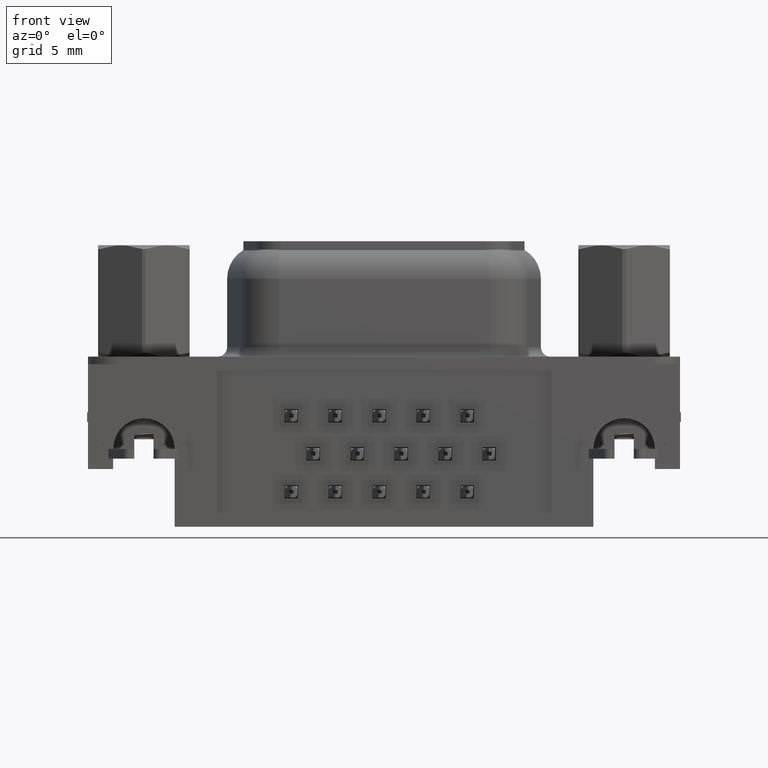
[diagram: clean part render]
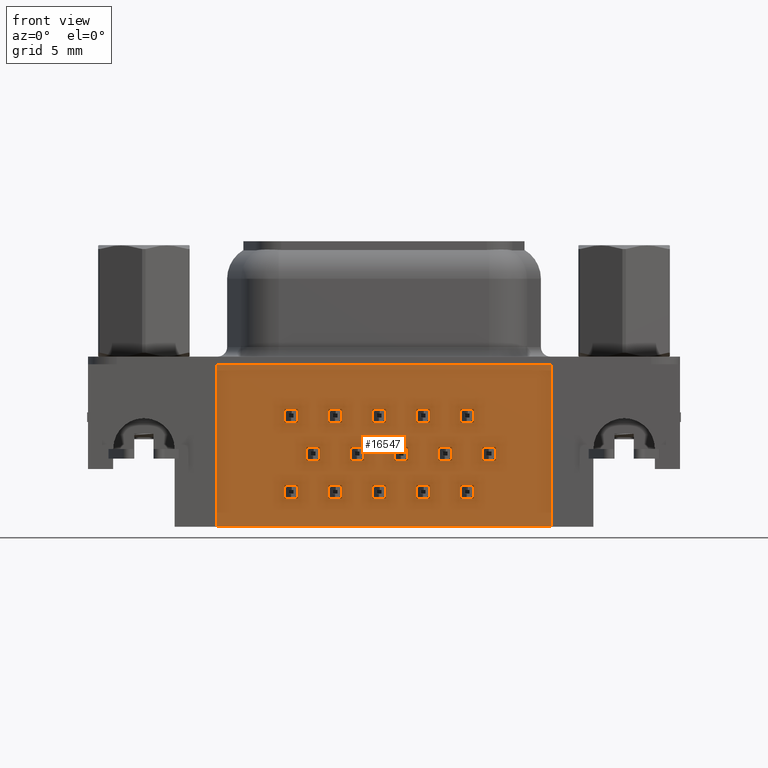
[diagram: same view with one face highlighted and labeled with its STEP entity id]
A machine part, front view. The second image highlights one B-rep face of the part: STEP entity #16547.
In plain terms, the highlighted planar face has unit normal (-0, -1, -0).
Its self-contained STEP definition (entity closure, byte-faithful):
#102 = CARTESIAN_POINT ( 'NONE',  ( 9.607000000000002900, -5.925000000000002500, -2.330000000000001400 ) ) ;
#259 = VERTEX_POINT ( 'NONE', #17184 ) ;
#267 = FACE_BOUND ( 'NONE', #7662, .T. ) ;
#364 = VECTOR ( 'NONE', #4855, 1000.000000000000000 ) ;
#491 = LINE ( 'NONE', #31818, #7268 ) ;
#502 = DIRECTION ( 'NONE',  ( -0.0000000000000000000, -0.0000000000000000000, 1.000000000000000000 ) ) ;
#509 = CARTESIAN_POINT ( 'NONE',  ( 16.46500000000000700, -5.925000000000004300, -2.330000000000000500 ) ) ;
#556 = CARTESIAN_POINT ( 'NONE',  ( 8.021000000000006100, -5.925000000000002500, -6.290000000000000900 ) ) ;
#761 = ORIENTED_EDGE ( 'NONE', *, *, #11475, .F. ) ;
#840 = EDGE_CURVE ( 'NONE', #259, #30590, #17893, .T. ) ;
#922 = CARTESIAN_POINT ( 'NONE',  ( 10.30700000000000900, -5.925000000000002500, -3.030000000000000700 ) ) ;
#939 = CARTESIAN_POINT ( 'NONE',  ( 21.19999999999999600, -5.925000000000005200, 3.734721338016180200E-016 ) ) ;
#943 = VERTEX_POINT ( 'NONE', #19006 ) ;
#975 = ORIENTED_EDGE ( 'NONE', *, *, #20814, .F. ) ;
#978 = DIRECTION ( 'NONE',  ( -0.0000000000000000000, -0.0000000000000000000, 1.000000000000000000 ) ) ;
#986 = CARTESIAN_POINT ( 'NONE',  ( 15.32200000000000800, -5.925000000000004300, -4.309999999999999600 ) ) ;
#1000 = EDGE_CURVE ( 'NONE', #1437, #14953, #13879, .T. ) ;
#1008 = CARTESIAN_POINT ( 'NONE',  ( 10.30700000000000900, -5.925000000000002500, -2.330000000000001400 ) ) ;
#1039 = FACE_BOUND ( 'NONE', #25432, .T. ) ;
#1075 = CARTESIAN_POINT ( 'NONE',  ( 16.46500000000000700, -5.925000000000004300, -2.330000000000000500 ) ) ;
#1128 = EDGE_CURVE ( 'NONE', #32878, #31295, #31884, .T. ) ;
#1156 = VECTOR ( 'NONE', #14418, 1000.000000000000000 ) ;
#1249 = DIRECTION ( 'NONE',  ( -0.0000000000000000000, -0.0000000000000000000, 1.000000000000000000 ) ) ;
#1256 = VECTOR ( 'NONE', #7553, 1000.000000000000000 ) ;
#1344 = EDGE_CURVE ( 'NONE', #27110, #16733, #26208, .T. ) ;
#1383 = CARTESIAN_POINT ( 'NONE',  ( 8.464000000000004000, -5.925000000000002500, -5.009999999999999800 ) ) ;
#1399 = EDGE_CURVE ( 'NONE', #30871, #5029, #5930, .T. ) ;
#1437 = VERTEX_POINT ( 'NONE', #2840 ) ;
#1464 = LINE ( 'NONE', #19379, #27796 ) ;
#1515 = ORIENTED_EDGE ( 'NONE', *, *, #8242, .F. ) ;
#1551 = ORIENTED_EDGE ( 'NONE', *, *, #8695, .F. ) ;
#1785 = CARTESIAN_POINT ( 'NONE',  ( 17.60800000000000400, -5.925000000000004300, -4.309999999999999600 ) ) ;
#1840 = ORIENTED_EDGE ( 'NONE', *, *, #7802, .F. ) ;
#1842 = FACE_BOUND ( 'NONE', #16660, .T. ) ;
#1902 = DIRECTION ( 'NONE',  ( -1.000000000000000000, -0.0000000000000000000, -0.0000000000000000000 ) ) ;
#1964 = CARTESIAN_POINT ( 'NONE',  ( 9.607000000000002900, -5.925000000000002500, -6.290000000000000900 ) ) ;
#2141 = CARTESIAN_POINT ( 'NONE',  ( 13.03600000000000500, -5.925000000000003400, -4.310000000000000500 ) ) ;
#2144 = CARTESIAN_POINT ( 'NONE',  ( 11.89300000000000600, -5.925000000000003400, -6.990000000000000200 ) ) ;
#2188 = EDGE_CURVE ( 'NONE', #5421, #29323, #24558, .T. ) ;
#2225 = VERTEX_POINT ( 'NONE', #19044 ) ;
#2229 = CARTESIAN_POINT ( 'NONE',  ( 10.75000000000000700, -5.925000000000002500, -4.310000000000000500 ) ) ;
#2244 = VERTEX_POINT ( 'NONE', #939 ) ;
#2261 = VERTEX_POINT ( 'NONE', #9209 ) ;
#2305 = EDGE_CURVE ( 'NONE', #17416, #21411, #22950, .T. ) ;
#2355 = DIRECTION ( 'NONE',  ( -0.0000000000000000000, -0.0000000000000000000, 1.000000000000000000 ) ) ;
#2412 = EDGE_CURVE ( 'NONE', #26919, #16171, #27398, .T. ) ;
#2413 = CARTESIAN_POINT ( 'NONE',  ( 15.32200000000000800, -5.925000000000004300, -4.309999999999999600 ) ) ;
#2585 = ORIENTED_EDGE ( 'NONE', *, *, #28016, .F. ) ;
#2613 = DIRECTION ( 'NONE',  ( 0.0000000000000000000, 0.0000000000000000000, -1.000000000000000000 ) ) ;
#2614 = VERTEX_POINT ( 'NONE', #33069 ) ;
#2637 = EDGE_CURVE ( 'NONE', #5029, #29262, #1464, .T. ) ;
#2653 = FACE_BOUND ( 'NONE', #23018, .T. ) ;
#2808 = LINE ( 'NONE', #24607, #22236 ) ;
#2810 = ORIENTED_EDGE ( 'NONE', *, *, #15285, .F. ) ;
#2840 = CARTESIAN_POINT ( 'NONE',  ( 11.44999999999999900, -5.925000000000003400, -4.310000000000000500 ) ) ;
#2850 = CARTESIAN_POINT ( 'NONE',  ( -1.181503277014172900E-015, -5.925000000000000700, -1.283567646398501500E-031 ) ) ;
#3173 = VECTOR ( 'NONE', #23768, 1000.000000000000000 ) ;
#3174 = LINE ( 'NONE', #25014, #9927 ) ;
#3185 = CARTESIAN_POINT ( 'NONE',  ( 7.321000000000006800, -5.925000000000002500, -3.030000000000001100 ) ) ;
#3397 = ORIENTED_EDGE ( 'NONE', *, *, #16672, .F. ) ;
#3422 = VERTEX_POINT ( 'NONE', #10089 ) ;
#3424 = VERTEX_POINT ( 'NONE', #10025 ) ;
#3434 = CARTESIAN_POINT ( 'NONE',  ( 16.02200000000000900, -5.925000000000004300, -4.309999999999999600 ) ) ;
#3459 = CARTESIAN_POINT ( 'NONE',  ( 9.164000000000003300, -5.925000000000002500, -4.310000000000000500 ) ) ;
#3466 = VERTEX_POINT ( 'NONE', #13604 ) ;
#3468 = VERTEX_POINT ( 'NONE', #13567 ) ;
#3621 = ORIENTED_EDGE ( 'NONE', *, *, #8354, .F. ) ;
#3647 = LINE ( 'NONE', #18473, #1256 ) ;
#3694 = DIRECTION ( 'NONE',  ( -0.0000000000000000000, -0.0000000000000000000, 1.000000000000000000 ) ) ;
#3720 = ORIENTED_EDGE ( 'NONE', *, *, #5660, .F. ) ;
#3819 = LINE ( 'NONE', #11072, #30172 ) ;
#3878 = VERTEX_POINT ( 'NONE', #21734 ) ;
#3971 = ORIENTED_EDGE ( 'NONE', *, *, #24977, .F. ) ;
#3973 = DIRECTION ( 'NONE',  ( 1.000000000000000000, 0.0000000000000000000, 0.0000000000000000000 ) ) ;
#4015 = CARTESIAN_POINT ( 'NONE',  ( 14.87900000000000100, -5.925000000000003400, -6.290000000000000000 ) ) ;
#4031 = VERTEX_POINT ( 'NONE', #10423 ) ;
#4038 = CARTESIAN_POINT ( 'NONE',  ( 16.46500000000000700, -5.925000000000004300, -6.989999999999999300 ) ) ;
#4056 = LINE ( 'NONE', #4254, #30417 ) ;
#4124 = EDGE_CURVE ( 'NONE', #8821, #18847, #32133, .T. ) ;
#4191 = DIRECTION ( 'NONE',  ( 1.026463595252548700E-016, 0.0000000000000000000, -1.000000000000000000 ) ) ;
#4199 = CARTESIAN_POINT ( 'NONE',  ( 10.30700000000000900, -5.925000000000002500, -6.990000000000000200 ) ) ;
#4254 = CARTESIAN_POINT ( 'NONE',  ( 14.17900000000000200, -5.925000000000003400, -2.330000000000001000 ) ) ;
#4600 = LINE ( 'NONE', #16667, #22442 ) ;
#4625 = CARTESIAN_POINT ( 'NONE',  ( 14.87900000000000100, -5.925000000000003400, -6.989999999999999300 ) ) ;
#4665 = VERTEX_POINT ( 'NONE', #21720 ) ;
#4833 = VERTEX_POINT ( 'NONE', #4199 ) ;
#4855 = DIRECTION ( 'NONE',  ( -1.000000000000000000, -0.0000000000000000000, -0.0000000000000000000 ) ) ;
#4875 = EDGE_CURVE ( 'NONE', #27146, #24668, #18475, .T. ) ;
#4877 = VECTOR ( 'NONE', #5235, 1000.000000000000000 ) ;
#4913 = DIRECTION ( 'NONE',  ( -0.0000000000000000000, -0.0000000000000000000, 1.000000000000000000 ) ) ;
#4952 = DIRECTION ( 'NONE',  ( 0.0000000000000000000, 0.0000000000000000000, -1.000000000000000000 ) ) ;
#5029 = VERTEX_POINT ( 'NONE', #24648 ) ;
#5077 = ORIENTED_EDGE ( 'NONE', *, *, #33007, .F. ) ;
#5128 = EDGE_CURVE ( 'NONE', #4833, #11558, #32479, .T. ) ;
#5166 = ORIENTED_EDGE ( 'NONE', *, *, #4875, .F. ) ;
#5215 = CARTESIAN_POINT ( 'NONE',  ( 9.607000000000002900, -5.925000000000002500, -6.990000000000000200 ) ) ;
#5221 = VERTEX_POINT ( 'NONE', #5992 ) ;
#5235 = DIRECTION ( 'NONE',  ( 1.000000000000000000, 0.0000000000000000000, 0.0000000000000000000 ) ) ;
#5253 = CARTESIAN_POINT ( 'NONE',  ( 17.16500000000000600, -5.925000000000004300, -6.290000000000000000 ) ) ;
#5301 = EDGE_LOOP ( 'NONE', ( #29925, #16450, #25724, #10560 ) ) ;
#5388 = DIRECTION ( 'NONE',  ( -1.992789748393805400E-016, -1.000000000000000000, -2.045526129718727500E-032 ) ) ;
#5402 = LINE ( 'NONE', #13141, #18135 ) ;
#5421 = VERTEX_POINT ( 'NONE', #19530 ) ;
#5467 = LINE ( 'NONE', #22286, #19761 ) ;
#5584 = CARTESIAN_POINT ( 'NONE',  ( 17.60800000000000400, -5.925000000000004300, -5.009999999999998900 ) ) ;
#5660 = EDGE_CURVE ( 'NONE', #24462, #259, #17328, .T. ) ;
#5694 = EDGE_LOOP ( 'NONE', ( #15405, #15263, #10488, #20249 ) ) ;
#5739 = DIRECTION ( 'NONE',  ( -0.0000000000000000000, -0.0000000000000000000, 1.000000000000000000 ) ) ;
#5746 = DIRECTION ( 'NONE',  ( 1.000000000000000000, 0.0000000000000000000, 0.0000000000000000000 ) ) ;
#5849 = VERTEX_POINT ( 'NONE', #13704 ) ;
#5930 = LINE ( 'NONE', #27682, #18631 ) ;
#5992 = CARTESIAN_POINT ( 'NONE',  ( 9.607000000000002900, -5.925000000000002500, -6.990000000000000200 ) ) ;
#6020 = VECTOR ( 'NONE', #10526, 1000.000000000000000 ) ;
#6080 = VECTOR ( 'NONE', #10486, 1000.000000000000000 ) ;
#6145 = VECTOR ( 'NONE', #23702, 1000.000000000000000 ) ;
#6207 = LINE ( 'NONE', #17548, #364 ) ;
#6233 = FACE_BOUND ( 'NONE', #11730, .T. ) ;
#6274 = ORIENTED_EDGE ( 'NONE', *, *, #20036, .F. ) ;
#6309 = DIRECTION ( 'NONE',  ( 0.0000000000000000000, 0.0000000000000000000, -1.000000000000000000 ) ) ;
#6357 = EDGE_CURVE ( 'NONE', #30590, #32611, #24016, .T. ) ;
#6367 = EDGE_LOOP ( 'NONE', ( #31073, #22810, #3971, #23197 ) ) ;
#6415 = VECTOR ( 'NONE', #5746, 1000.000000000000000 ) ;
#6558 = CARTESIAN_POINT ( 'NONE',  ( 17.16500000000000600, -5.925000000000004300, -2.330000000000000500 ) ) ;
#6725 = VECTOR ( 'NONE', #10311, 1000.000000000000000 ) ;
#6733 = VECTOR ( 'NONE', #14619, 1000.000000000000000 ) ;
#6754 = VECTOR ( 'NONE', #23481, 1000.000000000000000 ) ;
#6855 = VERTEX_POINT ( 'NONE', #22823 ) ;
#6897 = DIRECTION ( 'NONE',  ( -0.0000000000000000000, -0.0000000000000000000, 1.000000000000000000 ) ) ;
#7038 = FACE_BOUND ( 'NONE', #24220, .T. ) ;
#7096 = ORIENTED_EDGE ( 'NONE', *, *, #7908, .F. ) ;
#7152 = VECTOR ( 'NONE', #18393, 1000.000000000000000 ) ;
#7157 = ORIENTED_EDGE ( 'NONE', *, *, #1399, .F. ) ;
#7254 = DIRECTION ( 'NONE',  ( 1.000000000000000000, -1.992789748393805400E-016, 0.0000000000000000000 ) ) ;
#7263 = VECTOR ( 'NONE', #21766, 1000.000000000000000 ) ;
#7268 = VECTOR ( 'NONE', #1249, 1000.000000000000000 ) ;
#7280 = VECTOR ( 'NONE', #1902, 1000.000000000000000 ) ;
#7379 = ORIENTED_EDGE ( 'NONE', *, *, #15155, .F. ) ;
#7498 = CARTESIAN_POINT ( 'NONE',  ( 8.464000000000004000, -5.925000000000002500, -4.310000000000000500 ) ) ;
#7519 = CARTESIAN_POINT ( 'NONE',  ( 16.46500000000000700, -5.925000000000004300, -2.330000000000000500 ) ) ;
#7553 = DIRECTION ( 'NONE',  ( -1.000000000000000000, -0.0000000000000000000, -0.0000000000000000000 ) ) ;
#7557 = CARTESIAN_POINT ( 'NONE',  ( 10.30700000000000900, -5.925000000000002500, -6.290000000000000900 ) ) ;
#7637 = VECTOR ( 'NONE', #21477, 1000.000000000000000 ) ;
#7641 = ORIENTED_EDGE ( 'NONE', *, *, #1344, .F. ) ;
#7644 = CARTESIAN_POINT ( 'NONE',  ( 16.46500000000000700, -5.925000000000004300, -6.290000000000000000 ) ) ;
#7662 = EDGE_LOOP ( 'NONE', ( #16384, #2585, #9559, #9464 ) ) ;
#7772 = LINE ( 'NONE', #20912, #27273 ) ;
#7789 = EDGE_CURVE ( 'NONE', #3424, #2614, #20744, .T. ) ;
#7802 = EDGE_CURVE ( 'NONE', #29652, #26919, #19968, .T. ) ;
#7834 = FACE_BOUND ( 'NONE', #13513, .T. ) ;
#7908 = EDGE_CURVE ( 'NONE', #4031, #27146, #25942, .T. ) ;
#7998 = CARTESIAN_POINT ( 'NONE',  ( 10.75000000000000700, -5.925000000000002500, -5.009999999999999800 ) ) ;
#8014 = ORIENTED_EDGE ( 'NONE', *, *, #9536, .F. ) ;
#8074 = VECTOR ( 'NONE', #9902, 1000.000000000000000 ) ;
#8242 = EDGE_CURVE ( 'NONE', #14953, #32878, #17204, .T. ) ;
#8331 = CARTESIAN_POINT ( 'NONE',  ( 8.021000000000006100, -5.925000000000002500, -2.330000000000001800 ) ) ;
#8354 = EDGE_CURVE ( 'NONE', #11160, #23704, #3647, .T. ) ;
#8364 = CARTESIAN_POINT ( 'NONE',  ( 14.17900000000000200, -5.925000000000003400, -6.989999999999999300 ) ) ;
#8538 = ORIENTED_EDGE ( 'NONE', *, *, #26683, .F. ) ;
#8545 = DIRECTION ( 'NONE',  ( 0.0000000000000000000, 0.0000000000000000000, -1.000000000000000000 ) ) ;
#8625 = DIRECTION ( 'NONE',  ( 1.000000000000000000, 0.0000000000000000000, 0.0000000000000000000 ) ) ;
#8695 = EDGE_CURVE ( 'NONE', #32671, #27110, #27976, .T. ) ;
#8761 = LINE ( 'NONE', #7498, #27496 ) ;
#8800 = VERTEX_POINT ( 'NONE', #14377 ) ;
#8811 = ORIENTED_EDGE ( 'NONE', *, *, #17201, .F. ) ;
#8821 = VERTEX_POINT ( 'NONE', #29679 ) ;
#9099 = DIRECTION ( 'NONE',  ( 0.0000000000000000000, 0.0000000000000000000, -1.000000000000000000 ) ) ;
#9209 = CARTESIAN_POINT ( 'NONE',  ( 9.164000000000003300, -5.925000000000002500, -5.009999999999999800 ) ) ;
#9278 = ORIENTED_EDGE ( 'NONE', *, *, #2412, .F. ) ;
#9464 = ORIENTED_EDGE ( 'NONE', *, *, #2188, .F. ) ;
#9536 = EDGE_CURVE ( 'NONE', #28479, #9812, #2808, .T. ) ;
#9544 = VECTOR ( 'NONE', #14817, 1000.000000000000000 ) ;
#9559 = ORIENTED_EDGE ( 'NONE', *, *, #19596, .F. ) ;
#9812 = VERTEX_POINT ( 'NONE', #29309 ) ;
#9902 = DIRECTION ( 'NONE',  ( 1.000000000000000000, 0.0000000000000000000, 0.0000000000000000000 ) ) ;
#9920 = DIRECTION ( 'NONE',  ( 0.0000000000000000000, 0.0000000000000000000, -1.000000000000000000 ) ) ;
#9927 = VECTOR ( 'NONE', #7254, 1000.000000000000000 ) ;
#10025 = CARTESIAN_POINT ( 'NONE',  ( 18.30800000000000300, -5.925000000000004300, -4.309999999999999600 ) ) ;
#10089 = CARTESIAN_POINT ( 'NONE',  ( 13.03600000000000500, -5.925000000000003400, -4.310000000000000500 ) ) ;
#10257 = VERTEX_POINT ( 'NONE', #29274 ) ;
#10311 = DIRECTION ( 'NONE',  ( 1.000000000000000000, 0.0000000000000000000, 0.0000000000000000000 ) ) ;
#10366 = CARTESIAN_POINT ( 'NONE',  ( 21.19999999999999900, -5.925000000000005200, -8.449999999999999300 ) ) ;
#10412 = VECTOR ( 'NONE', #9099, 1000.000000000000000 ) ;
#10422 = CARTESIAN_POINT ( 'NONE',  ( 7.321000000000006800, -5.925000000000002500, -2.330000000000001800 ) ) ;
#10423 = CARTESIAN_POINT ( 'NONE',  ( 7.321000000000006800, -5.925000000000002500, -6.990000000000000200 ) ) ;
#10486 = DIRECTION ( 'NONE',  ( 0.0000000000000000000, 0.0000000000000000000, -1.000000000000000000 ) ) ;
#10488 = ORIENTED_EDGE ( 'NONE', *, *, #32253, .F. ) ;
#10503 = VECTOR ( 'NONE', #4913, 1000.000000000000000 ) ;
#10526 = DIRECTION ( 'NONE',  ( -1.000000000000000000, -0.0000000000000000000, -0.0000000000000000000 ) ) ;
#10535 = VERTEX_POINT ( 'NONE', #102 ) ;
#10551 = EDGE_CURVE ( 'NONE', #15350, #3424, #15540, .T. ) ;
#10560 = ORIENTED_EDGE ( 'NONE', *, *, #25847, .T. ) ;
#10570 = EDGE_LOOP ( 'NONE', ( #9278, #1840, #17396, #21381 ) ) ;
#10660 = EDGE_LOOP ( 'NONE', ( #25370, #8811, #3397, #3621 ) ) ;
#10680 = VECTOR ( 'NONE', #27469, 1000.000000000000000 ) ;
#11072 = CARTESIAN_POINT ( 'NONE',  ( 14.17900000000000200, -5.925000000000003400, -6.290000000000000000 ) ) ;
#11098 = VECTOR ( 'NONE', #26702, 1000.000000000000000 ) ;
#11160 = VERTEX_POINT ( 'NONE', #28120 ) ;
#11475 = EDGE_CURVE ( 'NONE', #2614, #12973, #11496, .T. ) ;
#11496 = LINE ( 'NONE', #14322, #3173 ) ;
#11508 = ORIENTED_EDGE ( 'NONE', *, *, #26101, .F. ) ;
#11558 = VERTEX_POINT ( 'NONE', #7557 ) ;
#11639 = CARTESIAN_POINT ( 'NONE',  ( 3.790000000000004500, -5.925000000000001600, 0.0000000000000000000 ) ) ;
#11682 = LINE ( 'NONE', #2413, #29674 ) ;
#11730 = EDGE_LOOP ( 'NONE', ( #30241, #15793, #3720, #25203 ) ) ;
#11811 = VECTOR ( 'NONE', #16243, 1000.000000000000000 ) ;
#11817 = DIRECTION ( 'NONE',  ( 1.000000000000000000, 0.0000000000000000000, 0.0000000000000000000 ) ) ;
#12026 = CARTESIAN_POINT ( 'NONE',  ( 3.790000000000004500, -5.925000000000001600, 0.0000000000000000000 ) ) ;
#12055 = EDGE_CURVE ( 'NONE', #11558, #6855, #24198, .T. ) ;
#12133 = VECTOR ( 'NONE', #8625, 1000.000000000000000 ) ;
#12183 = VECTOR ( 'NONE', #9920, 1000.000000000000000 ) ;
#12426 = CARTESIAN_POINT ( 'NONE',  ( 3.790000000000004500, -5.925000000000001600, 0.0000000000000000000 ) ) ;
#12476 = CARTESIAN_POINT ( 'NONE',  ( 17.16500000000000600, -5.925000000000004300, -2.330000000000000500 ) ) ;
#12538 = DIRECTION ( 'NONE',  ( -0.0000000000000000000, -0.0000000000000000000, 1.000000000000000000 ) ) ;
#12632 = DIRECTION ( 'NONE',  ( -4.105854381010194800E-016, -0.0000000000000000000, 1.000000000000000000 ) ) ;
#12765 = LINE ( 'NONE', #18112, #6020 ) ;
#12820 = LINE ( 'NONE', #20596, #6080 ) ;
#12885 = LINE ( 'NONE', #21132, #6145 ) ;
#12973 = VERTEX_POINT ( 'NONE', #5584 ) ;
#12981 = FACE_BOUND ( 'NONE', #24799, .T. ) ;
#12983 = DIRECTION ( 'NONE',  ( -1.000000000000000000, -0.0000000000000000000, -0.0000000000000000000 ) ) ;
#13028 = VECTOR ( 'NONE', #2355, 1000.000000000000000 ) ;
#13048 = EDGE_CURVE ( 'NONE', #24668, #18056, #18600, .T. ) ;
#13073 = ORIENTED_EDGE ( 'NONE', *, *, #1000, .F. ) ;
#13141 = CARTESIAN_POINT ( 'NONE',  ( 12.59300000000000500, -5.925000000000003400, -6.290000000000000900 ) ) ;
#13314 = EDGE_CURVE ( 'NONE', #9812, #20030, #5467, .T. ) ;
#13331 = VECTOR ( 'NONE', #26906, 1000.000000000000000 ) ;
#13413 = DIRECTION ( 'NONE',  ( -0.0000000000000000000, -0.0000000000000000000, 1.000000000000000000 ) ) ;
#13452 = LINE ( 'NONE', #5215, #6725 ) ;
#13493 = LINE ( 'NONE', #31160, #6754 ) ;
#13513 = EDGE_LOOP ( 'NONE', ( #25093, #32670, #14390, #29873 ) ) ;
#13567 = CARTESIAN_POINT ( 'NONE',  ( 14.17900000000000200, -5.925000000000003400, -3.030000000000000200 ) ) ;
#13604 = CARTESIAN_POINT ( 'NONE',  ( 8.021000000000006100, -5.925000000000002500, -3.030000000000001100 ) ) ;
#13653 = CARTESIAN_POINT ( 'NONE',  ( 7.321000000000006800, -5.925000000000002500, -6.290000000000000900 ) ) ;
#13704 = CARTESIAN_POINT ( 'NONE',  ( 11.89300000000000600, -5.925000000000003400, -3.030000000000000200 ) ) ;
#13761 = FACE_BOUND ( 'NONE', #6367, .T. ) ;
#13879 = LINE ( 'NONE', #2229, #7152 ) ;
#13946 = LINE ( 'NONE', #3185, #6415 ) ;
#13966 = LINE ( 'NONE', #986, #27563 ) ;
#14191 = ORIENTED_EDGE ( 'NONE', *, *, #10551, .F. ) ;
#14289 = DIRECTION ( 'NONE',  ( 1.000000000000000000, 0.0000000000000000000, 0.0000000000000000000 ) ) ;
#14322 = CARTESIAN_POINT ( 'NONE',  ( 17.60800000000000400, -5.925000000000004300, -4.309999999999999600 ) ) ;
#14333 = ORIENTED_EDGE ( 'NONE', *, *, #1128, .F. ) ;
#14377 = CARTESIAN_POINT ( 'NONE',  ( 8.464000000000004000, -5.925000000000002500, -4.310000000000000500 ) ) ;
#14390 = ORIENTED_EDGE ( 'NONE', *, *, #19130, .F. ) ;
#14405 = VECTOR ( 'NONE', #2613, 1000.000000000000000 ) ;
#14418 = DIRECTION ( 'NONE',  ( -1.000000000000000000, -0.0000000000000000000, -0.0000000000000000000 ) ) ;
#14452 = DIRECTION ( 'NONE',  ( 1.000000000000000000, -1.239088197126304500E-015, 0.0000000000000000000 ) ) ;
#14514 = DIRECTION ( 'NONE',  ( 1.000000000000000000, 0.0000000000000000000, 0.0000000000000000000 ) ) ;
#14619 = DIRECTION ( 'NONE',  ( 1.000000000000000000, 0.0000000000000000000, 0.0000000000000000000 ) ) ;
#14722 = EDGE_CURVE ( 'NONE', #10257, #17362, #6207, .T. ) ;
#14796 = DIRECTION ( 'NONE',  ( 0.0000000000000000000, 0.0000000000000000000, -1.000000000000000000 ) ) ;
#14817 = DIRECTION ( 'NONE',  ( -1.000000000000000000, -0.0000000000000000000, -0.0000000000000000000 ) ) ;
#14842 = LINE ( 'NONE', #29836, #28433 ) ;
#14953 = VERTEX_POINT ( 'NONE', #20789 ) ;
#15155 = EDGE_CURVE ( 'NONE', #31295, #1437, #23782, .T. ) ;
#15263 = ORIENTED_EDGE ( 'NONE', *, *, #18273, .F. ) ;
#15285 = EDGE_CURVE ( 'NONE', #3422, #30871, #32647, .T. ) ;
#15350 = VERTEX_POINT ( 'NONE', #32909 ) ;
#15405 = ORIENTED_EDGE ( 'NONE', *, *, #28948, .F. ) ;
#15468 = LINE ( 'NONE', #17336, #1156 ) ;
#15540 = LINE ( 'NONE', #20398, #22262 ) ;
#15674 = DIRECTION ( 'NONE',  ( -0.0000000000000000000, -0.0000000000000000000, 1.000000000000000000 ) ) ;
#15705 = CARTESIAN_POINT ( 'NONE',  ( 9.164000000000003300, -5.925000000000002500, -4.310000000000000500 ) ) ;
#15747 = ORIENTED_EDGE ( 'NONE', *, *, #5128, .F. ) ;
#15793 = ORIENTED_EDGE ( 'NONE', *, *, #840, .F. ) ;
#15844 = DIRECTION ( 'NONE',  ( -0.0000000000000000000, -0.0000000000000000000, 1.000000000000000000 ) ) ;
#16171 = VERTEX_POINT ( 'NONE', #21584 ) ;
#16205 = CARTESIAN_POINT ( 'NONE',  ( 10.75000000000000700, -5.925000000000002500, -5.009999999999999800 ) ) ;
#16243 = DIRECTION ( 'NONE',  ( -1.000000000000000000, -0.0000000000000000000, -0.0000000000000000000 ) ) ;
#16252 = VECTOR ( 'NONE', #13413, 1000.000000000000000 ) ;
#16323 = LINE ( 'NONE', #24791, #9544 ) ;
#16352 = VERTEX_POINT ( 'NONE', #4625 ) ;
#16384 = ORIENTED_EDGE ( 'NONE', *, *, #30280, .F. ) ;
#16450 = ORIENTED_EDGE ( 'NONE', *, *, #32290, .T. ) ;
#16510 = CARTESIAN_POINT ( 'NONE',  ( 12.59300000000000500, -5.925000000000003400, -6.290000000000000900 ) ) ;
#16547 = ADVANCED_FACE ( 'NONE', ( #28171, #1842, #21299, #2653, #7834, #1039, #27342, #20516, #13761, #7038, #267, #26501, #19720, #12981, #6233, #32574 ), #30838, .T. ) ;
#16660 = EDGE_LOOP ( 'NONE', ( #24599, #7641, #1551, #975 ) ) ;
#16667 = CARTESIAN_POINT ( 'NONE',  ( 11.89300000000000600, -5.925000000000003400, -3.030000000000000200 ) ) ;
#16672 = EDGE_CURVE ( 'NONE', #23704, #23880, #3819, .T. ) ;
#16680 = CARTESIAN_POINT ( 'NONE',  ( 10.75000000000000700, -5.925000000000002500, -4.310000000000000500 ) ) ;
#16733 = VERTEX_POINT ( 'NONE', #29607 ) ;
#16739 = LINE ( 'NONE', #22476, #29515 ) ;
#16898 = VECTOR ( 'NONE', #978, 1000.000000000000000 ) ;
#17093 = DIRECTION ( 'NONE',  ( 0.0000000000000000000, 0.0000000000000000000, -1.000000000000000000 ) ) ;
#17184 = CARTESIAN_POINT ( 'NONE',  ( 16.46500000000000700, -5.925000000000004300, -3.029999999999999800 ) ) ;
#17201 = EDGE_CURVE ( 'NONE', #23880, #16352, #18123, .T. ) ;
#17204 = LINE ( 'NONE', #16680, #10412 ) ;
#17328 = LINE ( 'NONE', #7519, #30122 ) ;
#17336 = CARTESIAN_POINT ( 'NONE',  ( 13.03600000000000500, -5.925000000000003400, -4.310000000000000500 ) ) ;
#17362 = VERTEX_POINT ( 'NONE', #27190 ) ;
#17396 = ORIENTED_EDGE ( 'NONE', *, *, #21606, .F. ) ;
#17416 = VERTEX_POINT ( 'NONE', #12026 ) ;
#17524 = LINE ( 'NONE', #19769, #30325 ) ;
#17525 = CARTESIAN_POINT ( 'NONE',  ( 8.021000000000006100, -5.925000000000002500, -6.990000000000000200 ) ) ;
#17545 = ORIENTED_EDGE ( 'NONE', *, *, #7789, .F. ) ;
#17548 = CARTESIAN_POINT ( 'NONE',  ( 11.89300000000000600, -5.925000000000003400, -2.330000000000001000 ) ) ;
#17757 = CARTESIAN_POINT ( 'NONE',  ( 8.464000000000004000, -5.925000000000002500, -5.009999999999999800 ) ) ;
#17893 = LINE ( 'NONE', #26805, #11098 ) ;
#17934 = CARTESIAN_POINT ( 'NONE',  ( 3.790000000000004500, -5.925000000000003400, -8.449999999999999300 ) ) ;
#17943 = AXIS2_PLACEMENT_3D ( 'NONE', #2850, #5388, #23147 ) ;
#18044 = VECTOR ( 'NONE', #19219, 1000.000000000000000 ) ;
#18056 = VERTEX_POINT ( 'NONE', #28181 ) ;
#18112 = CARTESIAN_POINT ( 'NONE',  ( 16.46500000000000700, -5.925000000000004300, -6.290000000000000000 ) ) ;
#18123 = LINE ( 'NONE', #23835, #12133 ) ;
#18135 = VECTOR ( 'NONE', #15674, 1000.000000000000000 ) ;
#18273 = EDGE_CURVE ( 'NONE', #5849, #4665, #4600, .T. ) ;
#18393 = DIRECTION ( 'NONE',  ( -1.000000000000000000, 1.239088197126304500E-015, -0.0000000000000000000 ) ) ;
#18416 = LINE ( 'NONE', #20172, #24368 ) ;
#18473 = CARTESIAN_POINT ( 'NONE',  ( 14.17900000000000200, -5.925000000000003400, -6.290000000000000000 ) ) ;
#18475 = LINE ( 'NONE', #556, #16898 ) ;
#18600 = LINE ( 'NONE', #13653, #11811 ) ;
#18631 = VECTOR ( 'NONE', #11817, 1000.000000000000000 ) ;
#18678 = ORIENTED_EDGE ( 'NONE', *, *, #22553, .F. ) ;
#18696 = EDGE_CURVE ( 'NONE', #12973, #15350, #7772, .T. ) ;
#18765 = DIRECTION ( 'NONE',  ( -1.000000000000000000, -0.0000000000000000000, -0.0000000000000000000 ) ) ;
#18836 = DIRECTION ( 'NONE',  ( -1.000000000000000000, -0.0000000000000000000, -0.0000000000000000000 ) ) ;
#18847 = VERTEX_POINT ( 'NONE', #21556 ) ;
#18901 = CARTESIAN_POINT ( 'NONE',  ( 11.44999999999999900, -5.925000000000003400, -4.310000000000000500 ) ) ;
#19006 = CARTESIAN_POINT ( 'NONE',  ( 16.46500000000000700, -5.925000000000004300, -6.290000000000000000 ) ) ;
#19044 = CARTESIAN_POINT ( 'NONE',  ( 7.321000000000006800, -5.925000000000002500, -3.030000000000001100 ) ) ;
#19130 = EDGE_CURVE ( 'NONE', #943, #23916, #28015, .T. ) ;
#19206 = EDGE_CURVE ( 'NONE', #30215, #2225, #12820, .T. ) ;
#19219 = DIRECTION ( 'NONE',  ( -0.0000000000000000000, -0.0000000000000000000, 1.000000000000000000 ) ) ;
#19379 = CARTESIAN_POINT ( 'NONE',  ( 13.73600000000000400, -5.925000000000003400, -4.310000000000000500 ) ) ;
#19513 = EDGE_CURVE ( 'NONE', #23916, #8821, #25921, .T. ) ;
#19521 = CARTESIAN_POINT ( 'NONE',  ( 15.32200000000000800, -5.925000000000004300, -4.309999999999999600 ) ) ;
#19530 = CARTESIAN_POINT ( 'NONE',  ( 14.87900000000000100, -5.925000000000003400, -2.330000000000001000 ) ) ;
#19596 = EDGE_CURVE ( 'NONE', #29323, #3468, #4056, .T. ) ;
#19720 = FACE_BOUND ( 'NONE', #10570, .T. ) ;
#19761 = VECTOR ( 'NONE', #6897, 1000.000000000000000 ) ;
#19769 = CARTESIAN_POINT ( 'NONE',  ( 11.89300000000000600, -5.925000000000003400, -2.330000000000001000 ) ) ;
#19787 = VECTOR ( 'NONE', #19919, 1000.000000000000000 ) ;
#19803 = EDGE_LOOP ( 'NONE', ( #15747, #21538, #5077, #31776 ) ) ;
#19919 = DIRECTION ( 'NONE',  ( 0.0000000000000000000, 0.0000000000000000000, -1.000000000000000000 ) ) ;
#19968 = LINE ( 'NONE', #25136, #8074 ) ;
#20030 = VERTEX_POINT ( 'NONE', #3434 ) ;
#20036 = EDGE_CURVE ( 'NONE', #20030, #29363, #13966, .T. ) ;
#20049 = DIRECTION ( 'NONE',  ( -1.000000000000000000, -0.0000000000000000000, -0.0000000000000000000 ) ) ;
#20172 = CARTESIAN_POINT ( 'NONE',  ( 21.19999999999999600, -5.925000000000005200, 3.734721338016180200E-016 ) ) ;
#20249 = ORIENTED_EDGE ( 'NONE', *, *, #14722, .F. ) ;
#20352 = VECTOR ( 'NONE', #27487, 1000.000000000000000 ) ;
#20398 = CARTESIAN_POINT ( 'NONE',  ( 18.30800000000000300, -5.925000000000004300, -4.309999999999999600 ) ) ;
#20424 = EDGE_CURVE ( 'NONE', #18847, #943, #12765, .T. ) ;
#20428 = CARTESIAN_POINT ( 'NONE',  ( 7.321000000000006800, -5.925000000000002500, -6.990000000000000200 ) ) ;
#20430 = LINE ( 'NONE', #15705, #28088 ) ;
#20462 = CARTESIAN_POINT ( 'NONE',  ( 15.32200000000000800, -5.925000000000004300, -5.009999999999998900 ) ) ;
#20516 = FACE_BOUND ( 'NONE', #23846, .T. ) ;
#20596 = CARTESIAN_POINT ( 'NONE',  ( 7.321000000000006800, -5.925000000000002500, -2.330000000000001800 ) ) ;
#20744 = LINE ( 'NONE', #1785, #7280 ) ;
#20789 = CARTESIAN_POINT ( 'NONE',  ( 10.75000000000000700, -5.925000000000002500, -4.310000000000000500 ) ) ;
#20814 = EDGE_CURVE ( 'NONE', #24704, #32671, #16739, .T. ) ;
#20818 = CARTESIAN_POINT ( 'NONE',  ( 9.607000000000002900, -5.925000000000002500, -3.030000000000000700 ) ) ;
#20912 = CARTESIAN_POINT ( 'NONE',  ( 17.60800000000000400, -5.925000000000004300, -5.009999999999998900 ) ) ;
#21132 = CARTESIAN_POINT ( 'NONE',  ( 7.321000000000006800, -5.925000000000002500, -6.290000000000000900 ) ) ;
#21232 = EDGE_CURVE ( 'NONE', #16171, #10535, #16323, .T. ) ;
#21248 = VECTOR ( 'NONE', #12983, 1000.000000000000000 ) ;
#21299 = FACE_BOUND ( 'NONE', #19803, .T. ) ;
#21331 = EDGE_CURVE ( 'NONE', #27775, #8800, #8761, .T. ) ;
#21381 = ORIENTED_EDGE ( 'NONE', *, *, #21232, .F. ) ;
#21411 = VERTEX_POINT ( 'NONE', #17934 ) ;
#21477 = DIRECTION ( 'NONE',  ( 0.0000000000000000000, 0.0000000000000000000, -1.000000000000000000 ) ) ;
#21538 = ORIENTED_EDGE ( 'NONE', *, *, #22360, .F. ) ;
#21556 = CARTESIAN_POINT ( 'NONE',  ( 17.16500000000000600, -5.925000000000004300, -6.290000000000000000 ) ) ;
#21584 = CARTESIAN_POINT ( 'NONE',  ( 10.30700000000000900, -5.925000000000002500, -2.330000000000001400 ) ) ;
#21606 = EDGE_CURVE ( 'NONE', #10535, #29652, #13493, .T. ) ;
#21609 = VECTOR ( 'NONE', #31977, 1000.000000000000000 ) ;
#21720 = CARTESIAN_POINT ( 'NONE',  ( 12.59300000000000500, -5.925000000000003400, -3.030000000000000200 ) ) ;
#21734 = CARTESIAN_POINT ( 'NONE',  ( 14.87900000000000100, -5.925000000000003400, -3.030000000000000200 ) ) ;
#21766 = DIRECTION ( 'NONE',  ( 1.000000000000000000, 0.0000000000000000000, 0.0000000000000000000 ) ) ;
#21775 = VECTOR ( 'NONE', #6309, 1000.000000000000000 ) ;
#21931 = CARTESIAN_POINT ( 'NONE',  ( 14.17900000000000200, -5.925000000000003400, -2.330000000000001000 ) ) ;
#22130 = CARTESIAN_POINT ( 'NONE',  ( 11.89300000000000600, -5.925000000000003400, -6.990000000000000200 ) ) ;
#22153 = VECTOR ( 'NONE', #3694, 1000.000000000000000 ) ;
#22236 = VECTOR ( 'NONE', #14289, 1000.000000000000000 ) ;
#22262 = VECTOR ( 'NONE', #25524, 1000.000000000000000 ) ;
#22286 = CARTESIAN_POINT ( 'NONE',  ( 16.02200000000000900, -5.925000000000004300, -4.309999999999999600 ) ) ;
#22360 = EDGE_CURVE ( 'NONE', #5221, #4833, #13452, .T. ) ;
#22442 = VECTOR ( 'NONE', #3973, 1000.000000000000000 ) ;
#22476 = CARTESIAN_POINT ( 'NONE',  ( 11.89300000000000600, -5.925000000000003400, -6.290000000000000900 ) ) ;
#22553 = EDGE_CURVE ( 'NONE', #3466, #28966, #29843, .T. ) ;
#22684 = ORIENTED_EDGE ( 'NONE', *, *, #32694, .F. ) ;
#22810 = ORIENTED_EDGE ( 'NONE', *, *, #26424, .F. ) ;
#22823 = CARTESIAN_POINT ( 'NONE',  ( 9.607000000000002900, -5.925000000000002500, -6.290000000000000900 ) ) ;
#22950 = LINE ( 'NONE', #12426, #23764 ) ;
#23018 = EDGE_LOOP ( 'NONE', ( #5166, #7096, #30768, #32537 ) ) ;
#23147 = DIRECTION ( 'NONE',  ( 1.000000000000000000, -1.992789748393805400E-016, 0.0000000000000000000 ) ) ;
#23197 = ORIENTED_EDGE ( 'NONE', *, *, #21331, .F. ) ;
#23221 = ORIENTED_EDGE ( 'NONE', *, *, #19206, .F. ) ;
#23406 = LINE ( 'NONE', #24051, #21775 ) ;
#23481 = DIRECTION ( 'NONE',  ( 0.0000000000000000000, 0.0000000000000000000, -1.000000000000000000 ) ) ;
#23497 = DIRECTION ( 'NONE',  ( 1.000000000000000000, 0.0000000000000000000, 0.0000000000000000000 ) ) ;
#23702 = DIRECTION ( 'NONE',  ( 0.0000000000000000000, 0.0000000000000000000, -1.000000000000000000 ) ) ;
#23704 = VERTEX_POINT ( 'NONE', #30567 ) ;
#23764 = VECTOR ( 'NONE', #4191, 1000.000000000000000 ) ;
#23768 = DIRECTION ( 'NONE',  ( 0.0000000000000000000, 0.0000000000000000000, -1.000000000000000000 ) ) ;
#23782 = LINE ( 'NONE', #18901, #22153 ) ;
#23835 = CARTESIAN_POINT ( 'NONE',  ( 14.17900000000000200, -5.925000000000003400, -6.989999999999999300 ) ) ;
#23846 = EDGE_LOOP ( 'NONE', ( #7379, #14333, #1515, #13073 ) ) ;
#23880 = VERTEX_POINT ( 'NONE', #8364 ) ;
#23916 = VERTEX_POINT ( 'NONE', #28036 ) ;
#24016 = LINE ( 'NONE', #12476, #10503 ) ;
#24043 = VECTOR ( 'NONE', #18836, 1000.000000000000000 ) ;
#24051 = CARTESIAN_POINT ( 'NONE',  ( 9.607000000000002900, -5.925000000000002500, -6.290000000000000900 ) ) ;
#24198 = LINE ( 'NONE', #1964, #10680 ) ;
#24202 = VECTOR ( 'NONE', #14452, 1000.000000000000000 ) ;
#24220 = EDGE_LOOP ( 'NONE', ( #14191, #26491, #761, #17545 ) ) ;
#24368 = VECTOR ( 'NONE', #12632, 1000.000000000000000 ) ;
#24462 = VERTEX_POINT ( 'NONE', #509 ) ;
#24558 = LINE ( 'NONE', #26728, #30649 ) ;
#24599 = ORIENTED_EDGE ( 'NONE', *, *, #25590, .F. ) ;
#24607 = CARTESIAN_POINT ( 'NONE',  ( 15.32200000000000800, -5.925000000000004300, -5.009999999999998900 ) ) ;
#24648 = CARTESIAN_POINT ( 'NONE',  ( 13.73600000000000400, -5.925000000000003400, -5.009999999999999800 ) ) ;
#24668 = VERTEX_POINT ( 'NONE', #26388 ) ;
#24704 = VERTEX_POINT ( 'NONE', #16510 ) ;
#24791 = CARTESIAN_POINT ( 'NONE',  ( 9.607000000000002900, -5.925000000000002500, -2.330000000000001400 ) ) ;
#24799 = EDGE_LOOP ( 'NONE', ( #18678, #27327, #23221, #11508 ) ) ;
#24839 = LINE ( 'NONE', #1075, #24043 ) ;
#24903 = ORIENTED_EDGE ( 'NONE', *, *, #2637, .F. ) ;
#24977 = EDGE_CURVE ( 'NONE', #8800, #28197, #25698, .T. ) ;
#24997 = CARTESIAN_POINT ( 'NONE',  ( 10.30700000000000900, -5.925000000000002500, -6.290000000000000900 ) ) ;
#25014 = CARTESIAN_POINT ( 'NONE',  ( 3.790000000000005400, -5.925000000000001600, -8.449999999999999300 ) ) ;
#25093 = ORIENTED_EDGE ( 'NONE', *, *, #4124, .F. ) ;
#25136 = CARTESIAN_POINT ( 'NONE',  ( 9.607000000000002900, -5.925000000000002500, -3.030000000000000700 ) ) ;
#25157 = CARTESIAN_POINT ( 'NONE',  ( 8.464000000000004000, -5.925000000000002500, -4.310000000000000500 ) ) ;
#25197 = DIRECTION ( 'NONE',  ( -1.000000000000000000, -0.0000000000000000000, -0.0000000000000000000 ) ) ;
#25203 = ORIENTED_EDGE ( 'NONE', *, *, #26330, .F. ) ;
#25243 = DIRECTION ( 'NONE',  ( -1.000000000000000000, -0.0000000000000000000, -0.0000000000000000000 ) ) ;
#25370 = ORIENTED_EDGE ( 'NONE', *, *, #27864, .F. ) ;
#25432 = EDGE_LOOP ( 'NONE', ( #28490, #8014, #8538, #6274 ) ) ;
#25456 = CARTESIAN_POINT ( 'NONE',  ( 17.16500000000000600, -5.925000000000004300, -3.029999999999999800 ) ) ;
#25524 = DIRECTION ( 'NONE',  ( -0.0000000000000000000, -0.0000000000000000000, 1.000000000000000000 ) ) ;
#25590 = EDGE_CURVE ( 'NONE', #16733, #24704, #5402, .T. ) ;
#25608 = VECTOR ( 'NONE', #15844, 1000.000000000000000 ) ;
#25698 = LINE ( 'NONE', #25157, #12183 ) ;
#25724 = ORIENTED_EDGE ( 'NONE', *, *, #28168, .T. ) ;
#25847 = EDGE_CURVE ( 'NONE', #2244, #17416, #27722, .T. ) ;
#25921 = LINE ( 'NONE', #4038, #7263 ) ;
#25942 = LINE ( 'NONE', #20428, #4877 ) ;
#26067 = VECTOR ( 'NONE', #5739, 1000.000000000000000 ) ;
#26101 = EDGE_CURVE ( 'NONE', #28966, #30215, #28113, .T. ) ;
#26208 = LINE ( 'NONE', #22130, #6733 ) ;
#26330 = EDGE_CURVE ( 'NONE', #32611, #24462, #24839, .T. ) ;
#26388 = CARTESIAN_POINT ( 'NONE',  ( 8.021000000000006100, -5.925000000000002500, -6.290000000000000900 ) ) ;
#26424 = EDGE_CURVE ( 'NONE', #28197, #2261, #29279, .T. ) ;
#26481 = CARTESIAN_POINT ( 'NONE',  ( 7.321000000000006800, -5.925000000000002500, -2.330000000000001800 ) ) ;
#26491 = ORIENTED_EDGE ( 'NONE', *, *, #18696, .F. ) ;
#26501 = FACE_BOUND ( 'NONE', #5694, .T. ) ;
#26683 = EDGE_CURVE ( 'NONE', #29363, #28479, #11682, .T. ) ;
#26702 = DIRECTION ( 'NONE',  ( 1.000000000000000000, 0.0000000000000000000, 0.0000000000000000000 ) ) ;
#26728 = CARTESIAN_POINT ( 'NONE',  ( 14.17900000000000200, -5.925000000000003400, -2.330000000000001000 ) ) ;
#26805 = CARTESIAN_POINT ( 'NONE',  ( 16.46500000000000700, -5.925000000000004300, -3.029999999999999800 ) ) ;
#26819 = EDGE_CURVE ( 'NONE', #2261, #27775, #20430, .T. ) ;
#26874 = EDGE_CURVE ( 'NONE', #18056, #4031, #12885, .T. ) ;
#26906 = DIRECTION ( 'NONE',  ( -1.000000000000000000, 1.992789748393805900E-016, -2.145158723731293600E-017 ) ) ;
#26919 = VERTEX_POINT ( 'NONE', #922 ) ;
#27110 = VERTEX_POINT ( 'NONE', #2144 ) ;
#27146 = VERTEX_POINT ( 'NONE', #17525 ) ;
#27190 = CARTESIAN_POINT ( 'NONE',  ( 11.89300000000000600, -5.925000000000003400, -2.330000000000001000 ) ) ;
#27273 = VECTOR ( 'NONE', #23497, 1000.000000000000000 ) ;
#27327 = ORIENTED_EDGE ( 'NONE', *, *, #31454, .F. ) ;
#27342 = FACE_BOUND ( 'NONE', #29901, .T. ) ;
#27398 = LINE ( 'NONE', #1008, #13028 ) ;
#27469 = DIRECTION ( 'NONE',  ( -1.000000000000000000, -0.0000000000000000000, -0.0000000000000000000 ) ) ;
#27487 = DIRECTION ( 'NONE',  ( -0.0000000000000000000, -0.0000000000000000000, 1.000000000000000000 ) ) ;
#27496 = VECTOR ( 'NONE', #25243, 1000.000000000000000 ) ;
#27563 = VECTOR ( 'NONE', #18765, 1000.000000000000000 ) ;
#27599 = CARTESIAN_POINT ( 'NONE',  ( 8.021000000000006100, -5.925000000000002500, -2.330000000000001800 ) ) ;
#27682 = CARTESIAN_POINT ( 'NONE',  ( 13.03600000000000500, -5.925000000000003400, -5.009999999999999800 ) ) ;
#27722 = LINE ( 'NONE', #11639, #13331 ) ;
#27775 = VERTEX_POINT ( 'NONE', #3459 ) ;
#27796 = VECTOR ( 'NONE', #12538, 1000.000000000000000 ) ;
#27864 = EDGE_CURVE ( 'NONE', #16352, #11160, #32452, .T. ) ;
#27976 = LINE ( 'NONE', #29145, #7637 ) ;
#28014 = LINE ( 'NONE', #30073, #20352 ) ;
#28015 = LINE ( 'NONE', #7644, #14405 ) ;
#28016 = EDGE_CURVE ( 'NONE', #3468, #3878, #14842, .T. ) ;
#28036 = CARTESIAN_POINT ( 'NONE',  ( 16.46500000000000700, -5.925000000000004300, -6.989999999999999300 ) ) ;
#28088 = VECTOR ( 'NONE', #502, 1000.000000000000000 ) ;
#28113 = LINE ( 'NONE', #10422, #21248 ) ;
#28120 = CARTESIAN_POINT ( 'NONE',  ( 14.87900000000000100, -5.925000000000003400, -6.290000000000000000 ) ) ;
#28168 = EDGE_CURVE ( 'NONE', #28509, #2244, #18416, .T. ) ;
#28171 = FACE_BOUND ( 'NONE', #10660, .T. ) ;
#28181 = CARTESIAN_POINT ( 'NONE',  ( 7.321000000000006800, -5.925000000000002500, -6.290000000000000900 ) ) ;
#28197 = VERTEX_POINT ( 'NONE', #17757 ) ;
#28433 = VECTOR ( 'NONE', #14514, 1000.000000000000000 ) ;
#28479 = VERTEX_POINT ( 'NONE', #20462 ) ;
#28490 = ORIENTED_EDGE ( 'NONE', *, *, #13314, .F. ) ;
#28509 = VERTEX_POINT ( 'NONE', #10366 ) ;
#28948 = EDGE_CURVE ( 'NONE', #4665, #10257, #28014, .T. ) ;
#28966 = VERTEX_POINT ( 'NONE', #27599 ) ;
#29145 = CARTESIAN_POINT ( 'NONE',  ( 11.89300000000000600, -5.925000000000003400, -6.290000000000000900 ) ) ;
#29262 = VERTEX_POINT ( 'NONE', #29268 ) ;
#29268 = CARTESIAN_POINT ( 'NONE',  ( 13.73600000000000400, -5.925000000000003400, -4.310000000000000500 ) ) ;
#29274 = CARTESIAN_POINT ( 'NONE',  ( 12.59300000000000500, -5.925000000000003400, -2.330000000000001000 ) ) ;
#29279 = LINE ( 'NONE', #1383, #21609 ) ;
#29309 = CARTESIAN_POINT ( 'NONE',  ( 16.02200000000000900, -5.925000000000004300, -5.009999999999998900 ) ) ;
#29323 = VERTEX_POINT ( 'NONE', #21931 ) ;
#29363 = VERTEX_POINT ( 'NONE', #19521 ) ;
#29515 = VECTOR ( 'NONE', #20049, 1000.000000000000000 ) ;
#29607 = CARTESIAN_POINT ( 'NONE',  ( 12.59300000000000500, -5.925000000000003400, -6.990000000000000200 ) ) ;
#29652 = VERTEX_POINT ( 'NONE', #20818 ) ;
#29674 = VECTOR ( 'NONE', #4952, 1000.000000000000000 ) ;
#29679 = CARTESIAN_POINT ( 'NONE',  ( 17.16500000000000600, -5.925000000000004300, -6.989999999999999300 ) ) ;
#29723 = CARTESIAN_POINT ( 'NONE',  ( 11.89300000000000600, -5.925000000000003400, -6.290000000000000900 ) ) ;
#29784 = DIRECTION ( 'NONE',  ( 0.0000000000000000000, 0.0000000000000000000, -1.000000000000000000 ) ) ;
#29836 = CARTESIAN_POINT ( 'NONE',  ( 14.17900000000000200, -5.925000000000003400, -3.030000000000000200 ) ) ;
#29843 = LINE ( 'NONE', #8331, #16252 ) ;
#29873 = ORIENTED_EDGE ( 'NONE', *, *, #20424, .F. ) ;
#29901 = EDGE_LOOP ( 'NONE', ( #24903, #7157, #2810, #22684 ) ) ;
#29925 = ORIENTED_EDGE ( 'NONE', *, *, #2305, .T. ) ;
#30073 = CARTESIAN_POINT ( 'NONE',  ( 12.59300000000000500, -5.925000000000003400, -2.330000000000001000 ) ) ;
#30122 = VECTOR ( 'NONE', #17093, 1000.000000000000000 ) ;
#30172 = VECTOR ( 'NONE', #8545, 1000.000000000000000 ) ;
#30215 = VERTEX_POINT ( 'NONE', #26481 ) ;
#30241 = ORIENTED_EDGE ( 'NONE', *, *, #6357, .F. ) ;
#30280 = EDGE_CURVE ( 'NONE', #3878, #5421, #491, .T. ) ;
#30325 = VECTOR ( 'NONE', #14796, 1000.000000000000000 ) ;
#30417 = VECTOR ( 'NONE', #29784, 1000.000000000000000 ) ;
#30567 = CARTESIAN_POINT ( 'NONE',  ( 14.17900000000000200, -5.925000000000003400, -6.290000000000000000 ) ) ;
#30590 = VERTEX_POINT ( 'NONE', #25456 ) ;
#30649 = VECTOR ( 'NONE', #25197, 1000.000000000000000 ) ;
#30768 = ORIENTED_EDGE ( 'NONE', *, *, #26874, .F. ) ;
#30838 = PLANE ( 'NONE',  #17943 ) ;
#30871 = VERTEX_POINT ( 'NONE', #32430 ) ;
#31073 = ORIENTED_EDGE ( 'NONE', *, *, #26819, .F. ) ;
#31160 = CARTESIAN_POINT ( 'NONE',  ( 9.607000000000002900, -5.925000000000002500, -2.330000000000001400 ) ) ;
#31295 = VERTEX_POINT ( 'NONE', #32734 ) ;
#31454 = EDGE_CURVE ( 'NONE', #2225, #3466, #13946, .T. ) ;
#31776 = ORIENTED_EDGE ( 'NONE', *, *, #12055, .F. ) ;
#31818 = CARTESIAN_POINT ( 'NONE',  ( 14.87900000000000100, -5.925000000000003400, -2.330000000000001000 ) ) ;
#31884 = LINE ( 'NONE', #16205, #24202 ) ;
#31977 = DIRECTION ( 'NONE',  ( 1.000000000000000000, 0.0000000000000000000, 0.0000000000000000000 ) ) ;
#32133 = LINE ( 'NONE', #5253, #26067 ) ;
#32253 = EDGE_CURVE ( 'NONE', #17362, #5849, #17524, .T. ) ;
#32290 = EDGE_CURVE ( 'NONE', #21411, #28509, #3174, .T. ) ;
#32430 = CARTESIAN_POINT ( 'NONE',  ( 13.03600000000000500, -5.925000000000003400, -5.009999999999999800 ) ) ;
#32452 = LINE ( 'NONE', #4015, #18044 ) ;
#32479 = LINE ( 'NONE', #24997, #25608 ) ;
#32537 = ORIENTED_EDGE ( 'NONE', *, *, #13048, .F. ) ;
#32574 = FACE_OUTER_BOUND ( 'NONE', #5301, .T. ) ;
#32611 = VERTEX_POINT ( 'NONE', #6558 ) ;
#32647 = LINE ( 'NONE', #2141, #19787 ) ;
#32670 = ORIENTED_EDGE ( 'NONE', *, *, #19513, .F. ) ;
#32671 = VERTEX_POINT ( 'NONE', #29723 ) ;
#32694 = EDGE_CURVE ( 'NONE', #29262, #3422, #15468, .T. ) ;
#32734 = CARTESIAN_POINT ( 'NONE',  ( 11.44999999999999900, -5.925000000000003400, -5.009999999999999800 ) ) ;
#32878 = VERTEX_POINT ( 'NONE', #7998 ) ;
#32909 = CARTESIAN_POINT ( 'NONE',  ( 18.30800000000000300, -5.925000000000004300, -5.009999999999998900 ) ) ;
#33007 = EDGE_CURVE ( 'NONE', #6855, #5221, #23406, .T. ) ;
#33069 = CARTESIAN_POINT ( 'NONE',  ( 17.60800000000000400, -5.925000000000004300, -4.309999999999999600 ) ) ;